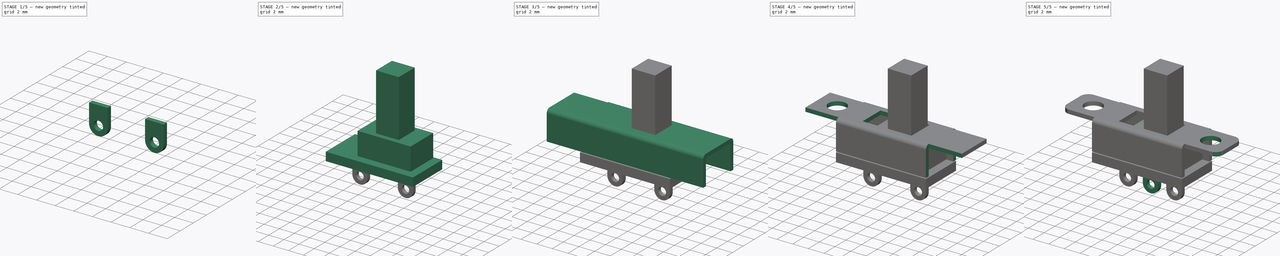
[diagram: build sequence overview — one tinted view per stage of 5, left to right]
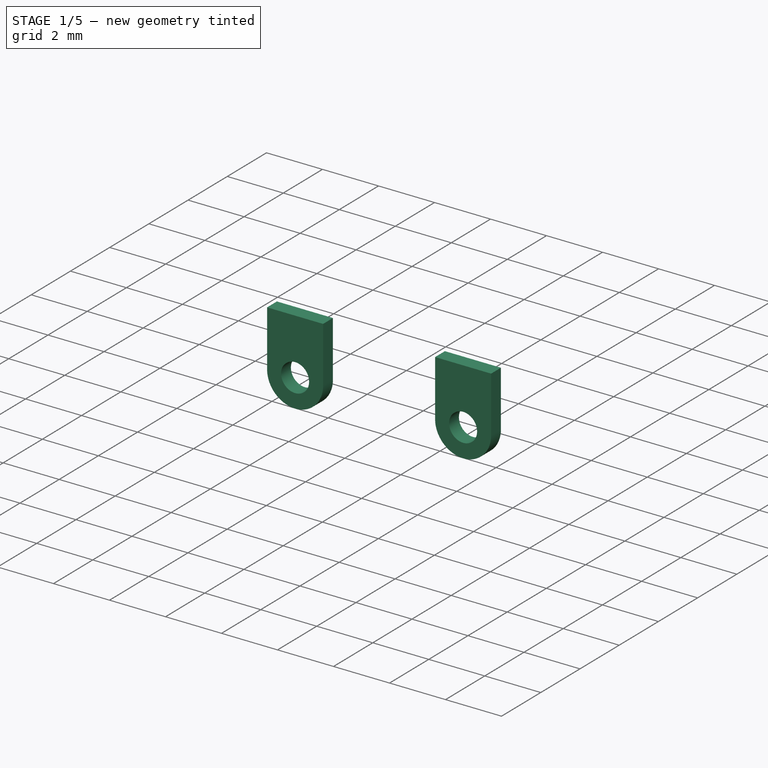
[diagram: stage 1 of 5 — iso view after this stage's code; geometry added in this stage tinted green]
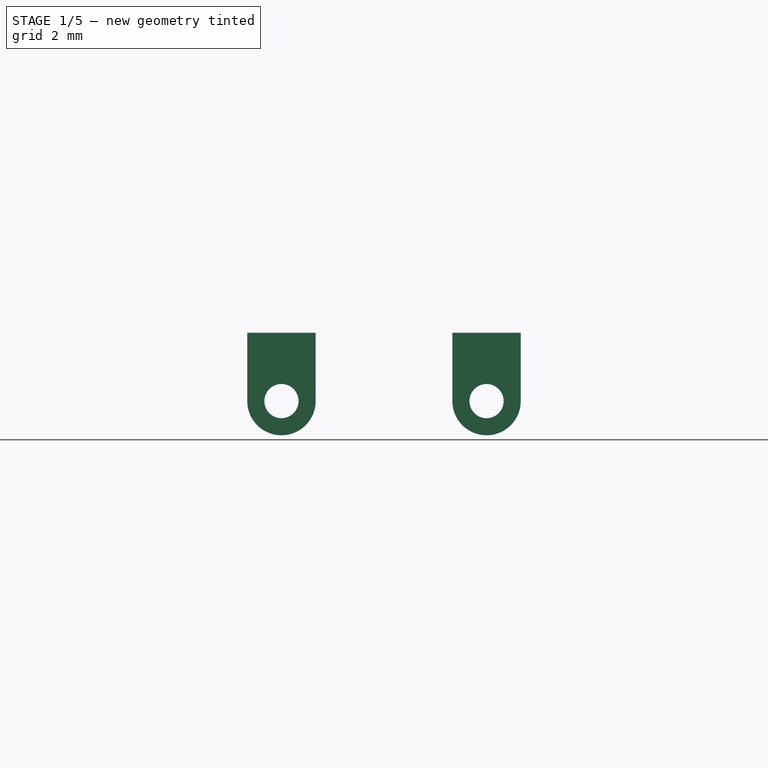
[diagram: stage 1 of 5 — front view after this stage's code; geometry added in this stage tinted green]
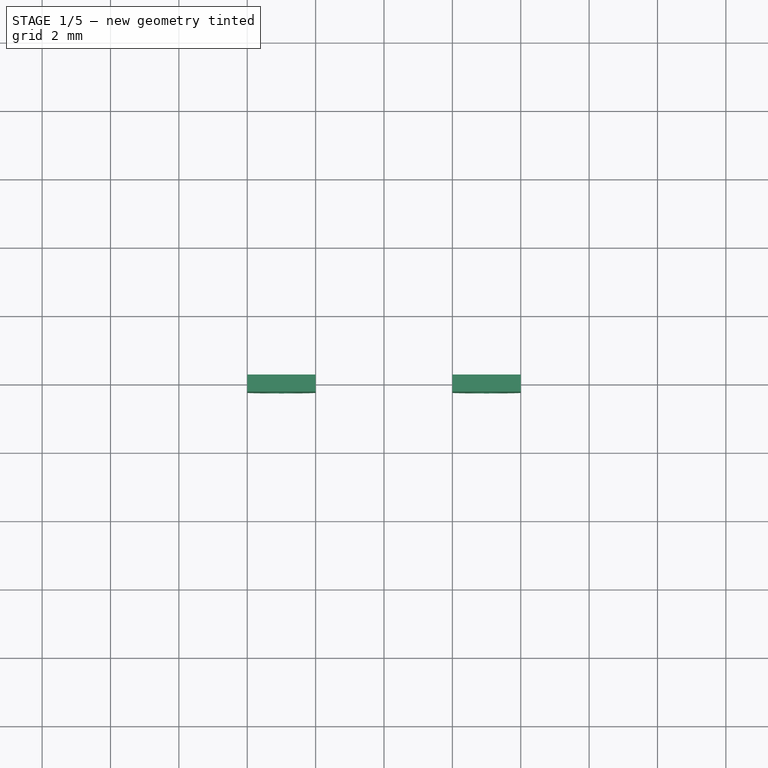
[diagram: stage 1 of 5 — top view after this stage's code; geometry added in this stage tinted green]
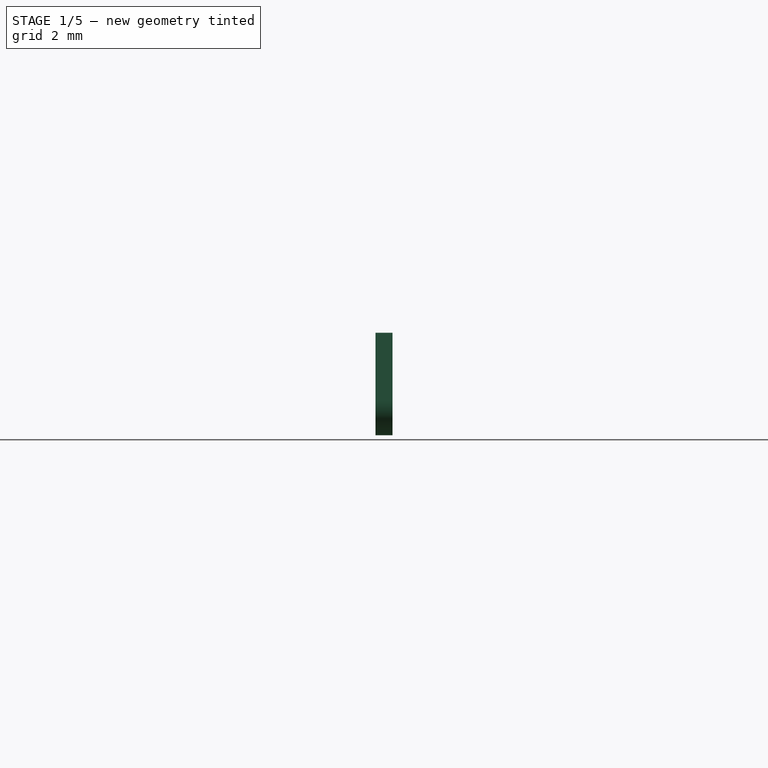
[diagram: stage 1 of 5 — right view after this stage's code; geometry added in this stage tinted green]
FCSTD DOCUMENT  (FreeCAD 0.14R3692 (Git))
Label: SlideSwitch
License: CC-BY 3.0
LicenseURL: http://creativecommons.org/licenses/by/3.0/
objects: Sketcher::SketchObject×7, PartDesign::Pad×4, PartDesign::Pocket×3, PartDesign::Mirrored×3, Part::Feature×3, Part::FeaturePython×2, Part::Thickness×1, PartDesign::MultiTransform×1, PartDesign::Fillet×1, Part::Box×1, Part::MultiFuse×1
note: 34 computed .brp shape members not serialized (recipe doc carries the construction recipe); baked Part::Feature solids carry a one-line shape summary decoded from their .brp

FEATURE [Sketcher::SketchObject] Sketch006  label="PinSketch006"
  Placement = pos=(0,0,0) rot=(-1,0,0;4.71239rad)
  sketch-geometry (5):
    g0: LineSegment StartX=1 StartY=-1.25 StartZ=0 EndX=1 EndY=-3.25 EndZ=0
    g1: ArcOfCircle CenterX=0 CenterY=-3.25 CenterZ=0 NormalX=0 NormalY=0 NormalZ=1 Radius=1 StartAngle=3.14159 EndAngle=6.28319
    g2: LineSegment StartX=-1 StartY=-3.25 StartZ=0 EndX=-1 EndY=-1.25 EndZ=0
    g3: LineSegment StartX=-1 StartY=-1.25 StartZ=0 EndX=1 EndY=-1.25 EndZ=0
    g4: Circle CenterX=0 CenterY=-3.25 CenterZ=0 NormalX=0 NormalY=0 NormalZ=1 Radius=0.5
  constraints (13):
    c: Tangent(g0,g1)
    c: Tangent(g1,g2)
    c: Coincident(g2,g3)
    c: Coincident(g3,g0)
    c: Vertical(g2)
    c: Vertical(g0)
    c: Horizontal(g3)
    c: PointOnObject(g1,g-2)
    c: DistanceX(g3) = 2
    c: DistanceY(g0) = -2
    c: DistanceY(g-1,g1) = -3.25
    c: Coincident(g1,g4)
    c: Radius(g4) = 0.5
FEATURE [PartDesign::Pad] Pad003  label="PinPad003"
  Length = 0.5
  Length2 = 100
  Midplane = true
  Placement = pos=(0,0,0) rot=(-1,0,0;4.71239rad)
  Sketch = -> Sketch006
  Type = 0
FEATURE [Part::FeaturePython] Clone  label="Clone of PinPad003"  # Draft clone (typed FeaturePython)
  Objects = -> [Pad003]
  Placement = pos=(3,0,0) rot=(1,0,0;1.5708rad)
  Scale = (1,1,1)
FEATURE [Part::FeaturePython] Clone001  label="Clone of PinPad004"  # Draft clone (typed FeaturePython)
  Objects = -> [Pad003]
  Placement = pos=(-3,0,0) rot=(1,0,0;1.5708rad)
  Scale = (1,1,1)
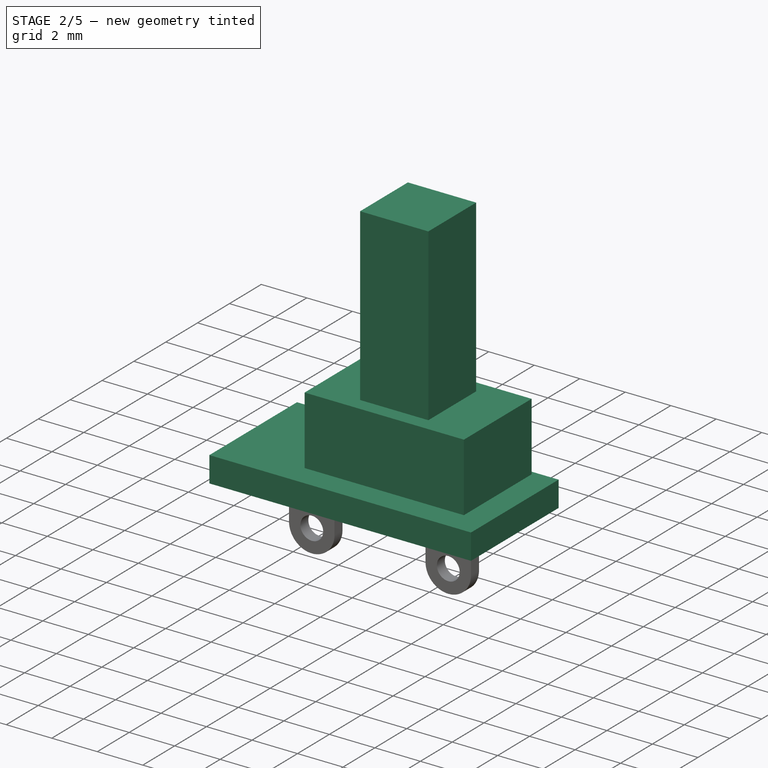
[diagram: stage 2 of 5 — iso view after this stage's code; geometry added in this stage tinted green]
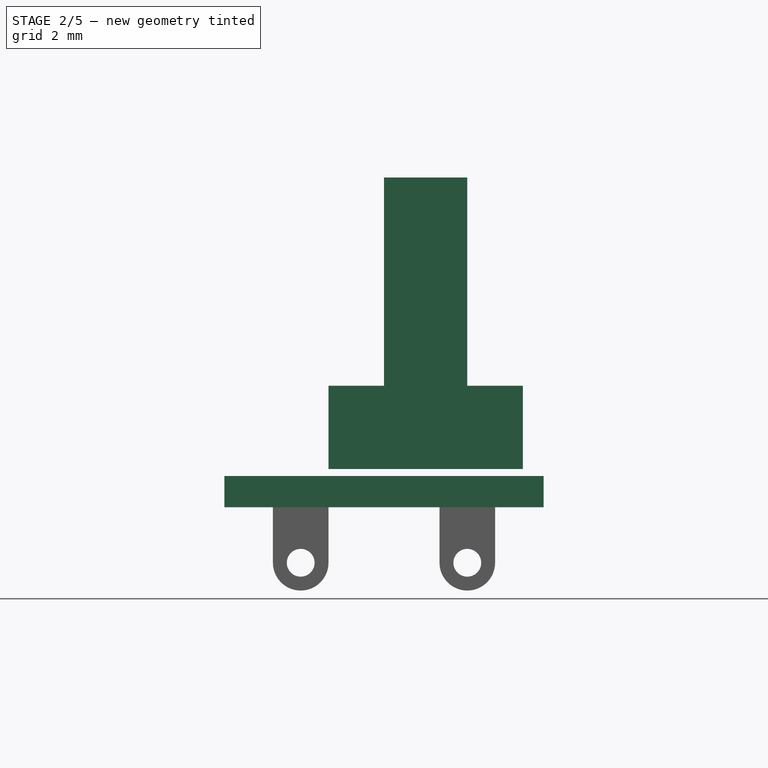
[diagram: stage 2 of 5 — front view after this stage's code; geometry added in this stage tinted green]
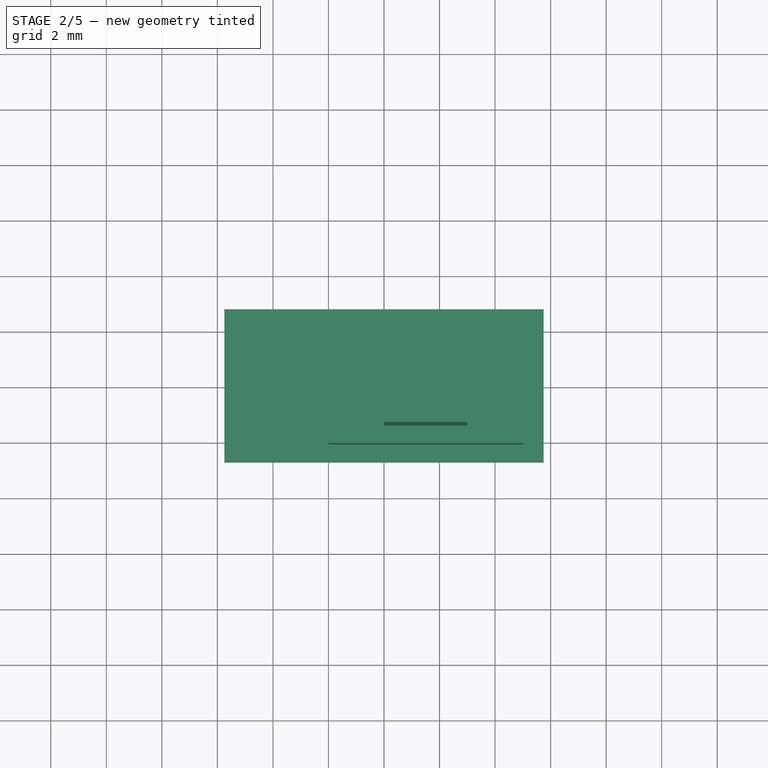
[diagram: stage 2 of 5 — top view after this stage's code; geometry added in this stage tinted green]
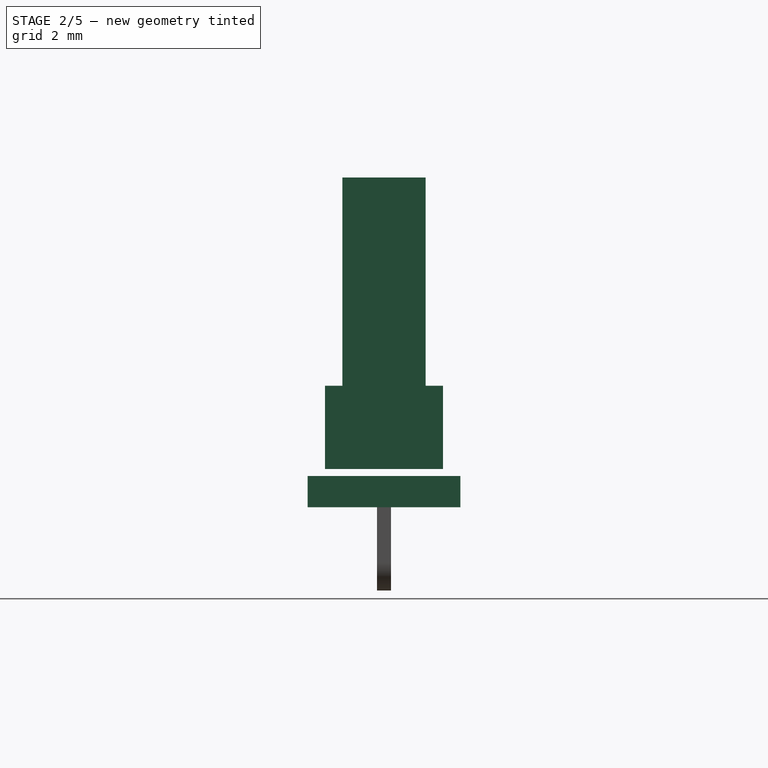
[diagram: stage 2 of 5 — right view after this stage's code; geometry added in this stage tinted green]
FEATURE [Part::Box] Box  label="BoardCube"
  Height = 1.125
  Length = 11.5
  Placement = pos=(-5.75,-2.75,-1.25) rot=(0,0,1;0rad)
  Width = 5.5
FEATURE [Sketcher::SketchObject] Sketch004  label="SlideSketch004"
  Placement = pos=(0,0,0) rot=(-1,0,0;4.71239rad)
  sketch-geometry (4):
    g0: LineSegment StartX=5 StartY=3.125 StartZ=0 EndX=5 EndY=0.125 EndZ=0
    g1: LineSegment StartX=5 StartY=0.125 StartZ=0 EndX=-2 EndY=0.125 EndZ=0
    g2: LineSegment StartX=-2 StartY=0.125 StartZ=0 EndX=-2 EndY=3.125 EndZ=0
    g3: LineSegment StartX=-2 StartY=3.125 StartZ=0 EndX=5 EndY=3.125 EndZ=0
  constraints (12):
    c: Vertical(g0)
    c: Coincident(g0,g1)
    c: Horizontal(g1)
    c: Coincident(g1,g2)
    c: Vertical(g2)
    c: DistanceY(g0) = -3
    c: DistanceY(g-1,g1) = 0.125
    c: Coincident(g0,g3)
    c: Coincident(g2,g3)
    c: Horizontal(g3)
    c: DistanceX(g1) = -7
    c: DistanceX(g-1,g1) = -2
FEATURE [PartDesign::Pad] Pad001  label="SlidePad001"
  Length = 4.25
  Length2 = 100
  Midplane = true
  Placement = pos=(0,0,0) rot=(-1,0,0;4.71239rad)
  Sketch = -> Sketch004
  Type = 0
FEATURE [Sketcher::SketchObject] Sketch005  label="SlideHandleSketch005"
  Placement = pos=(0,0,3.125) rot=(0,0,1;3.14159rad)
  Support = -> Pad001 [Face4]
  sketch-geometry (4):
    g0: LineSegment StartX=0 StartY=-1.5 StartZ=0 EndX=-3 EndY=-1.5 EndZ=0
    g1: LineSegment StartX=-3 StartY=-1.5 StartZ=0 EndX=-3 EndY=1.5 EndZ=0
    g2: LineSegment StartX=-3 StartY=1.5 StartZ=0 EndX=0 EndY=1.5 EndZ=0
    g3: LineSegment StartX=0 StartY=1.5 StartZ=0 EndX=0 EndY=-1.5 EndZ=0
  constraints (11):
    c: Coincident(g0,g1)
    c: Coincident(g1,g2)
    c: Coincident(g2,g3)
    c: Coincident(g3,g0)
    c: Horizontal(g0)
    c: Horizontal(g2)
    c: Vertical(g1)
    c: Vertical(g3)
    c: Equal(g0,g3)
    c: DistanceX(g0) = -3
    c: Symmetric(g0,g2,g-1)
FEATURE [PartDesign::Pad] Pad002  label="SlideHandlePad002"
  Length = 7.5
  Length2 = 100
  Placement = pos=(0,0,0) rot=(-1,0,0;4.71239rad)
  Sketch = -> Sketch005
  Type = 0
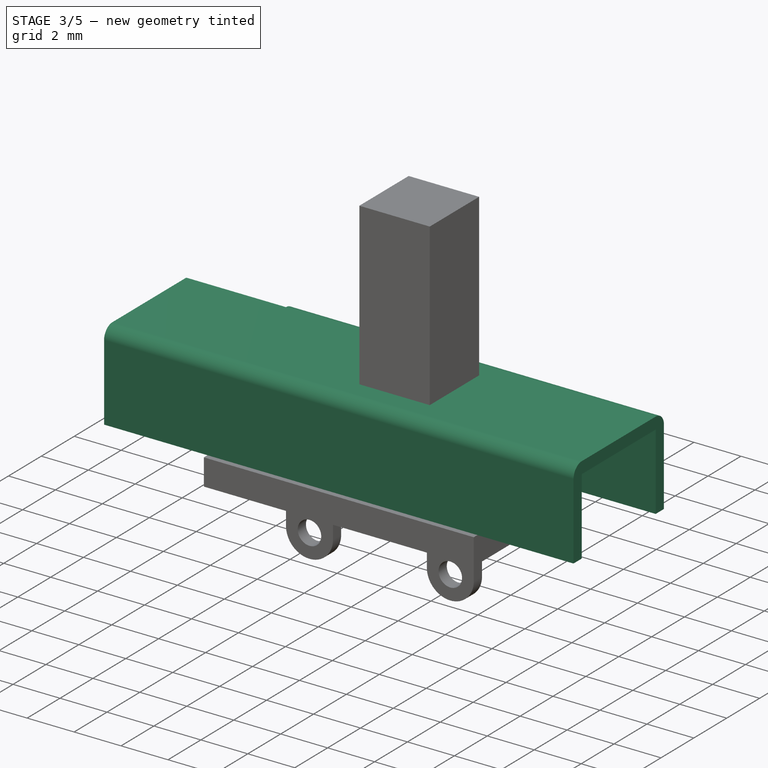
[diagram: stage 3 of 5 — iso view after this stage's code; geometry added in this stage tinted green]
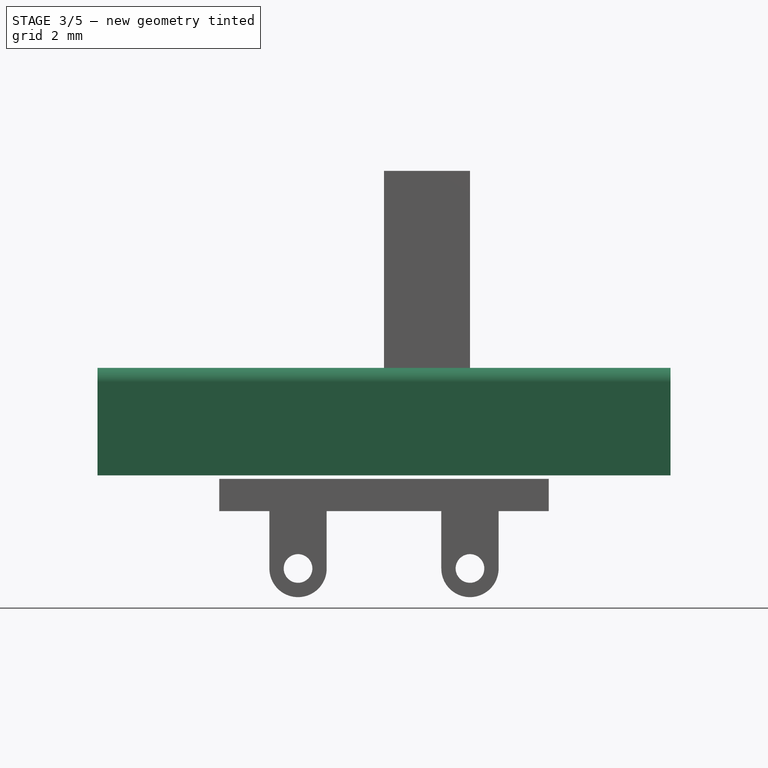
[diagram: stage 3 of 5 — front view after this stage's code; geometry added in this stage tinted green]
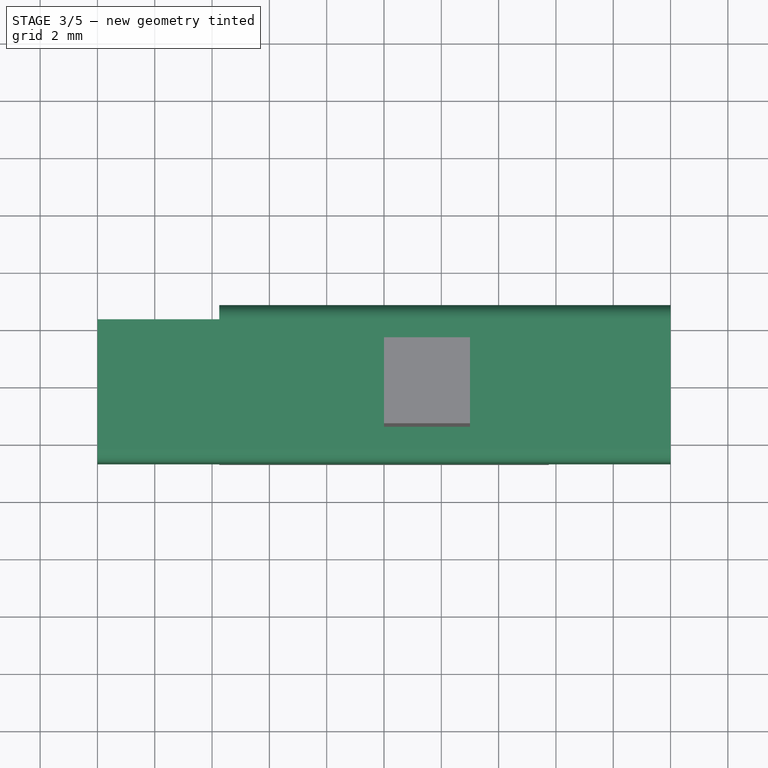
[diagram: stage 3 of 5 — top view after this stage's code; geometry added in this stage tinted green]
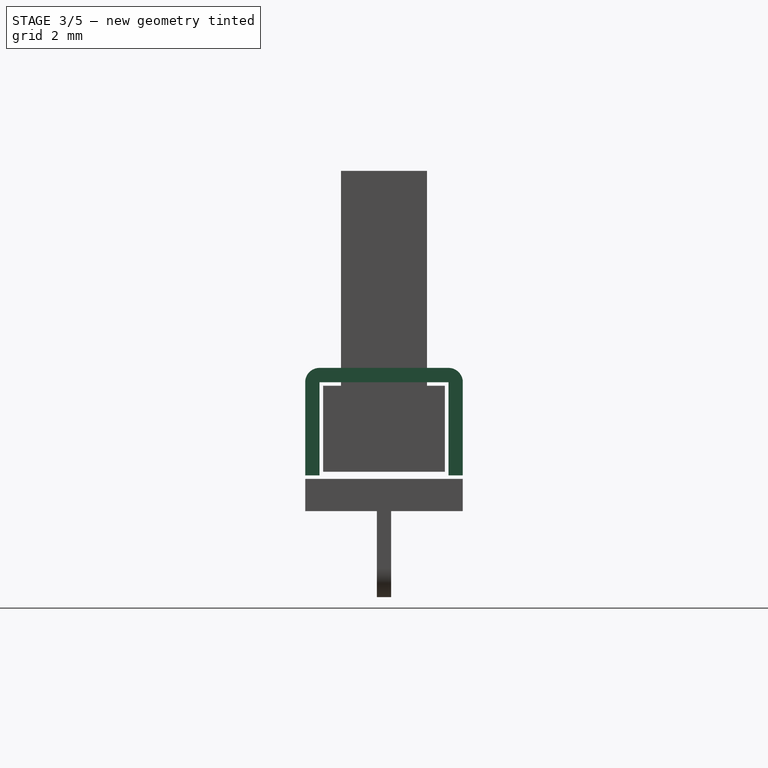
[diagram: stage 3 of 5 — right view after this stage's code; geometry added in this stage tinted green]
FEATURE [Sketcher::SketchObject] Sketch  label="BodySketch"
  sketch-geometry (4):
    g0: LineSegment StartX=-10 StartY=2.25 StartZ=0 EndX=10 EndY=2.25 EndZ=0
    g1: LineSegment StartX=10 StartY=2.25 StartZ=0 EndX=10 EndY=-2.25 EndZ=0
    g2: LineSegment StartX=10 StartY=-2.25 StartZ=0 EndX=-10 EndY=-2.25 EndZ=0
    g3: LineSegment StartX=-10 StartY=-2.25 StartZ=0 EndX=-10 EndY=2.25 EndZ=0
  constraints (11):
    c: Coincident(g0,g1)
    c: Coincident(g1,g2)
    c: Coincident(g2,g3)
    c: Coincident(g3,g0)
    c: Horizontal(g0)
    c: Horizontal(g2)
    c: Vertical(g1)
    c: Vertical(g3)
    c: DistanceX(g2) = -20
    c: DistanceY(g1) = -4.5
    c: Symmetric(g0,g2,g-1)
FEATURE [PartDesign::Pad] Pad  label="BodyPad"
  Length = 3.25
  Length2 = 100
  Sketch = -> Sketch
  Type = 0
FEATURE [Part::Thickness] Thickness  label="BodyThickness"
  Faces = -> Pad [Face2,Face5,Face4]
  Intersection = false
  Join = 0
  Mode = 0
  SelfIntersection = false
  Value = 0.5
FEATURE [Sketcher::SketchObject] Sketch001  label="BodyFinsSketch001"
  Placement = pos=(0,0,3.75) rot=(0,0,1;0rad)
  Support = -> Thickness [Face9]
  sketch-geometry (4):
    g0: LineSegment StartX=-11 StartY=3.25 StartZ=0 EndX=-5.75 EndY=3.25 EndZ=0
    g1: LineSegment StartX=-5.75 StartY=3.25 StartZ=0 EndX=-5.75 EndY=2.25 EndZ=0
    g2: LineSegment StartX=-5.75 StartY=2.25 StartZ=0 EndX=-11 EndY=2.25 EndZ=0
    g3: LineSegment StartX=-11 StartY=2.25 StartZ=0 EndX=-11 EndY=3.25 EndZ=0
  constraints (12):
    c: Coincident(g0,g1)
    c: Coincident(g1,g2)
    c: Coincident(g2,g3)
    c: Coincident(g3,g0)
    c: Horizontal(g0)
    c: Horizontal(g2)
    c: Vertical(g1)
    c: Vertical(g3)
    c: DistanceX(g-1,g1) = -5.75
    c: DistanceY(g-1,g1) = 2.25
    c: DistanceY(g1) = -1
    c: DistanceX(g2) = -5.25
FEATURE [PartDesign::Pocket] Pocket  label="BodyFinsPocket"
  Length = 5
  Sketch = -> Sketch001
  Type = 0
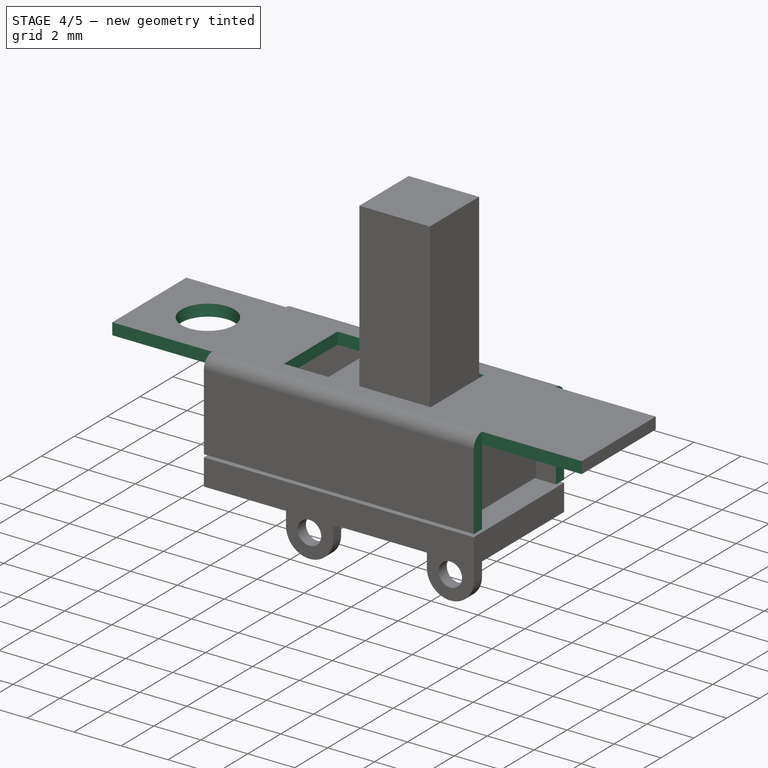
[diagram: stage 4 of 5 — iso view after this stage's code; geometry added in this stage tinted green]
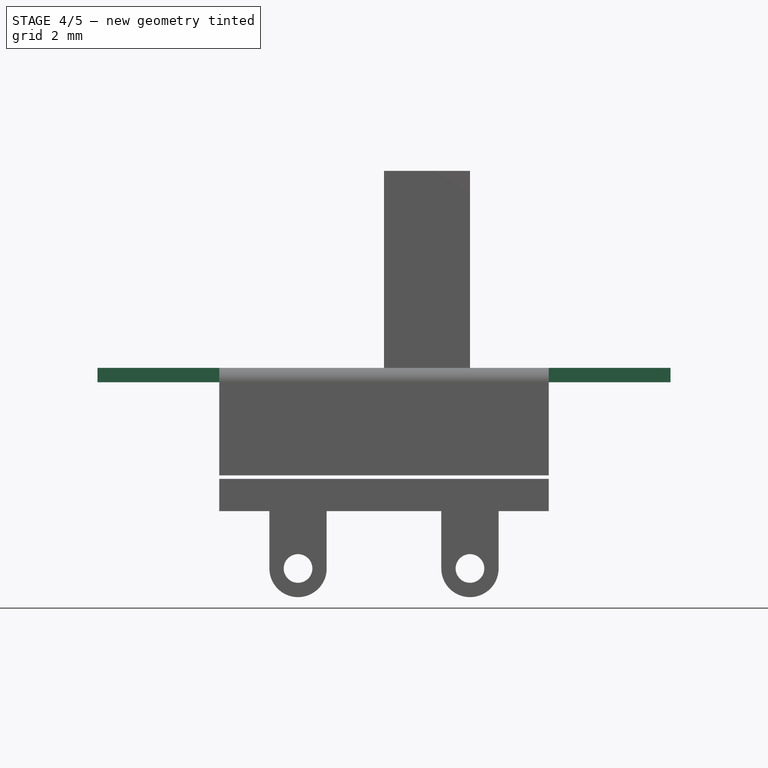
[diagram: stage 4 of 5 — front view after this stage's code; geometry added in this stage tinted green]
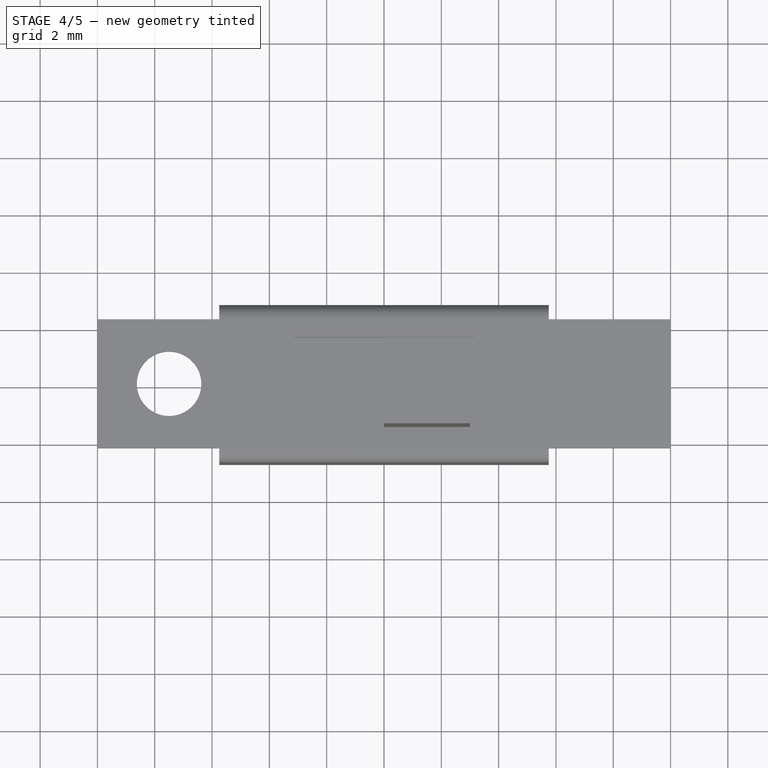
[diagram: stage 4 of 5 — top view after this stage's code; geometry added in this stage tinted green]
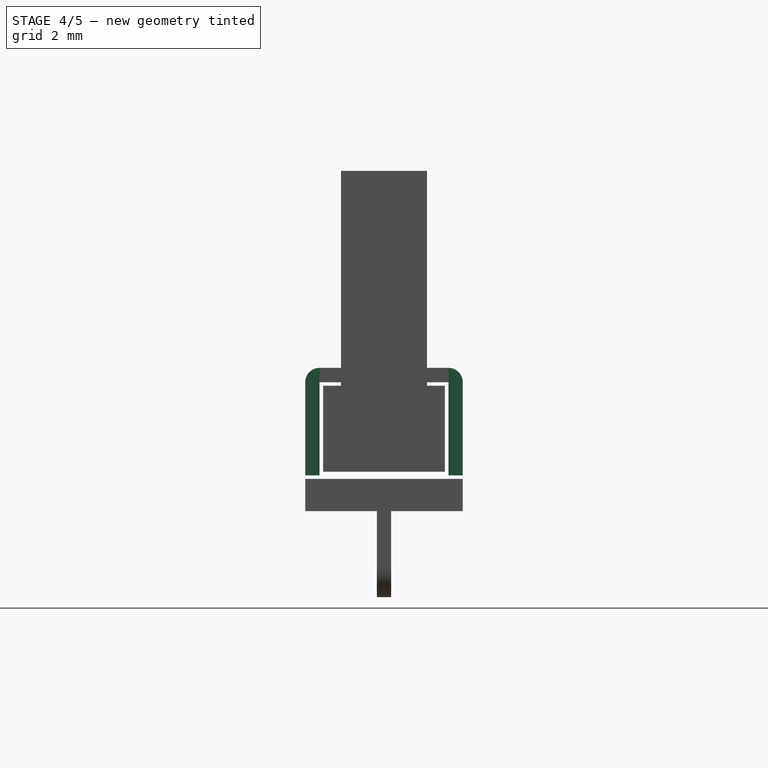
[diagram: stage 4 of 5 — right view after this stage's code; geometry added in this stage tinted green]
FEATURE [PartDesign::Mirrored] Mirrored  label="BodyFinsMirrored"
  MirrorPlane = -> Sketch001 [V_Axis]
FEATURE [PartDesign::Mirrored] Mirrored001  label="BodyFinsMirrored001"
  MirrorPlane = -> Sketch001 [H_Axis]
FEATURE [PartDesign::MultiTransform] MultiTransform  label="BodyFinsMultiTransform"
  Originals = -> [Pocket]
  Transformations = -> [Mirrored,Mirrored001]
FEATURE [Sketcher::SketchObject] Sketch002  label="BodySlideHoleSketch002"
  Placement = pos=(0,0,3.75) rot=(0,0,1;0rad)
  Support = -> MultiTransform [Face5]
  sketch-geometry (4):
    g0: LineSegment StartX=-3.125 StartY=1.625 StartZ=0 EndX=3.125 EndY=1.625 EndZ=0
    g1: LineSegment StartX=3.125 StartY=1.625 StartZ=0 EndX=3.125 EndY=-1.625 EndZ=0
    g2: LineSegment StartX=3.125 StartY=-1.625 StartZ=0 EndX=-3.125 EndY=-1.625 EndZ=0
    g3: LineSegment StartX=-3.125 StartY=-1.625 StartZ=0 EndX=-3.125 EndY=1.625 EndZ=0
  constraints (11):
    c: Coincident(g0,g1)
    c: Coincident(g1,g2)
    c: Coincident(g2,g3)
    c: Coincident(g3,g0)
    c: Horizontal(g0)
    c: Horizontal(g2)
    c: Vertical(g1)
    c: Vertical(g3)
    c: DistanceX(g2) = -6.25
    c: DistanceY(g1) = -3.25
    c: Symmetric(g1,g0,g-1)
FEATURE [PartDesign::Pocket] Pocket001  label="BodySlideHolePocket001"
  Length = 5
  Sketch = -> Sketch002
  Type = 0
FEATURE [Sketcher::SketchObject] Sketch003  label="BodyScrewHoleSketch003"
  Placement = pos=(0,0,3.75) rot=(0,0,1;0rad)
  Support = -> Pocket001 [Face5]
  sketch-geometry (1):
    g0: Circle CenterX=-7.5 CenterY=0 CenterZ=0 NormalX=0 NormalY=0 NormalZ=1 Radius=1.125
  constraints (3):
    c: PointOnObject(g0,g-1)
    c: Radius(g0) = 1.125
    c: DistanceX(g-1,g0) = -7.5
FEATURE [PartDesign::Pocket] Pocket002  label="BodyScrewHolePocket002"
  Length = 5
  Sketch = -> Sketch003
  Type = 0
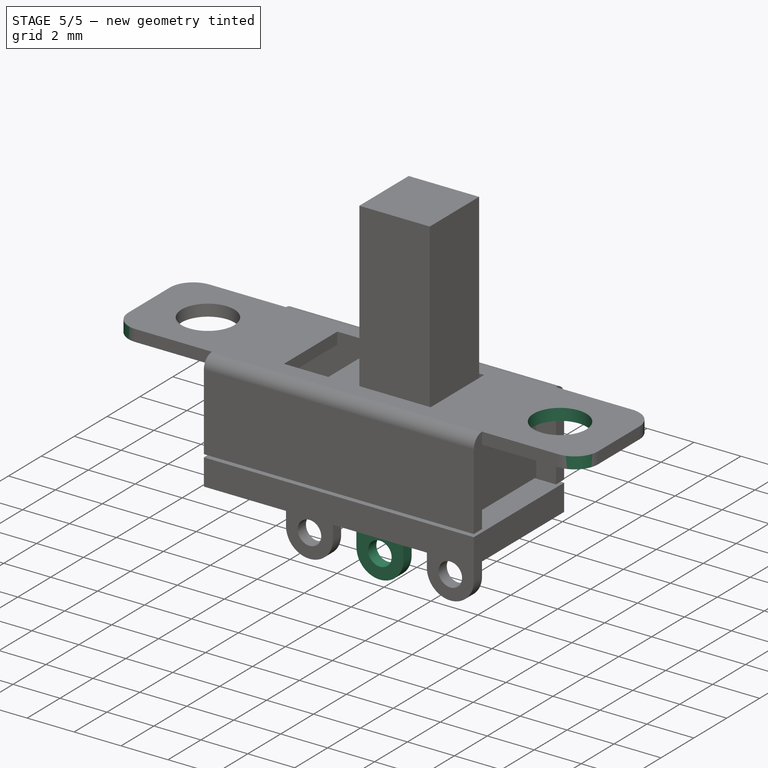
[diagram: stage 5 of 5 — iso view after this stage's code; geometry added in this stage tinted green]
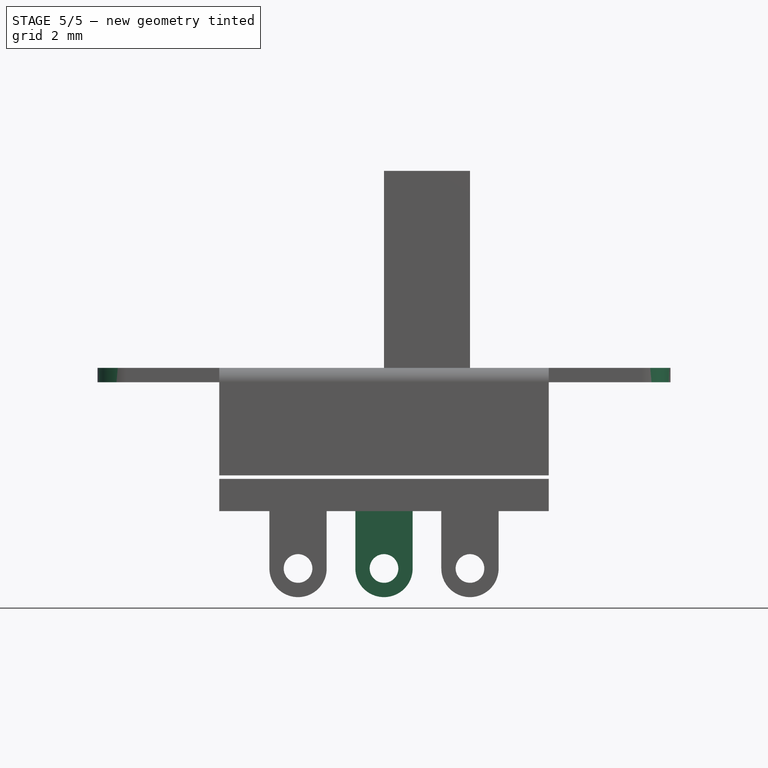
[diagram: stage 5 of 5 — front view after this stage's code; geometry added in this stage tinted green]
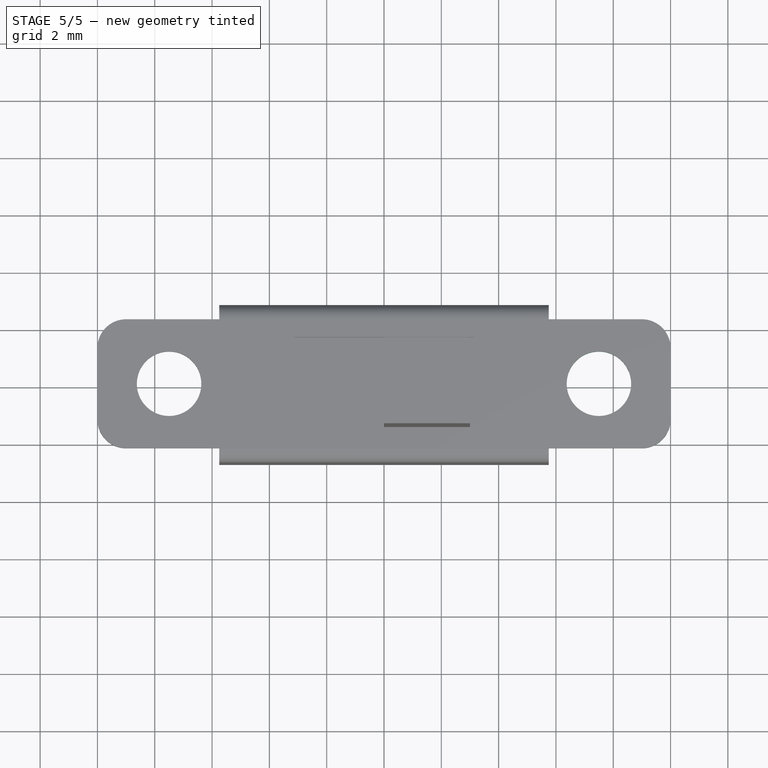
[diagram: stage 5 of 5 — top view after this stage's code; geometry added in this stage tinted green]
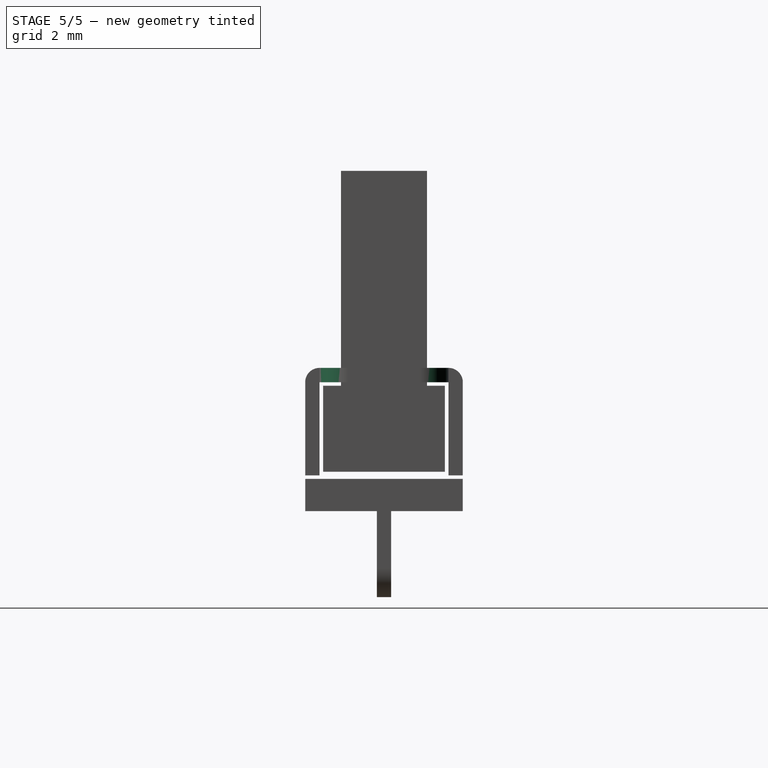
[diagram: stage 5 of 5 — right view after this stage's code; geometry added in this stage tinted green]
FEATURE [PartDesign::Mirrored] Mirrored002  label="BodyScrewHoleMirrored002"
  MirrorPlane = -> Sketch003 [V_Axis]
  Originals = -> [Pocket002]
FEATURE [PartDesign::Fillet] Fillet  label="BodyFillet"
  Base = -> Mirrored002 [Edge5,Edge1,Edge52,Edge47]
  Radius = 1
FEATURE [Part::MultiFuse] Fusion  label="SlideSwitchFusion"
  Shapes = -> [Clone001,Clone,Pad003,Pad002,Box,Fillet]
FEATURE [Part::Feature] Part__Feature  label="SlideSwitchFusion001"
  shape: bbox 11.5 x 5.5 x 4.125 mm, 24 faces (baked)
FEATURE [Part::Feature] Part__Feature001  label="SlideSwitchFusion002"
  shape: bbox 7 x 4.25 x 10.5 mm, 11 faces (baked)
FEATURE [Part::Feature] Part__Feature002  label="SlideSwitchFusion003"
  shape: bbox 20 x 5.5 x 3.75 mm, 30 faces (baked)
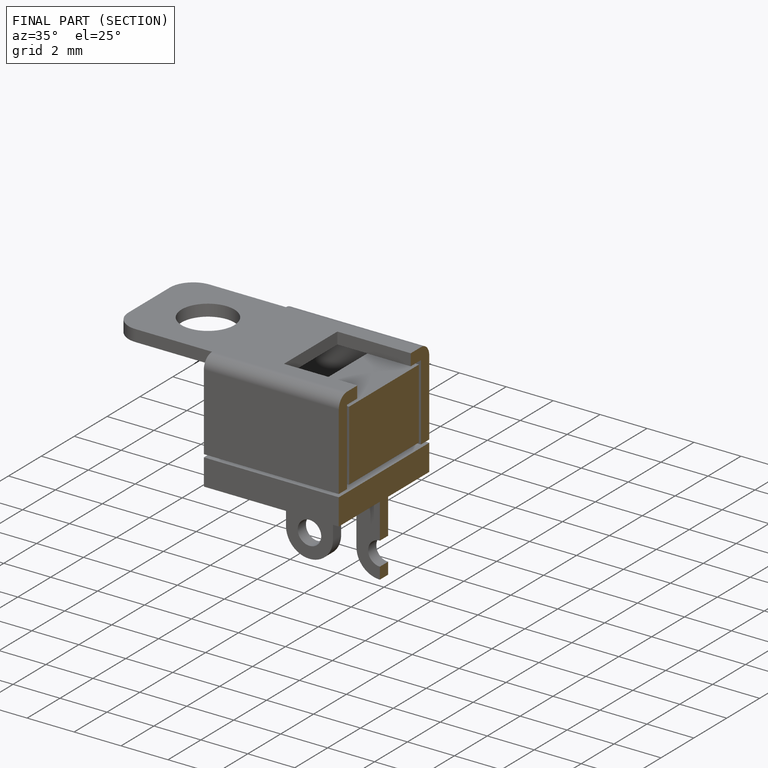
[diagram: finished part — half-section view (interior)]
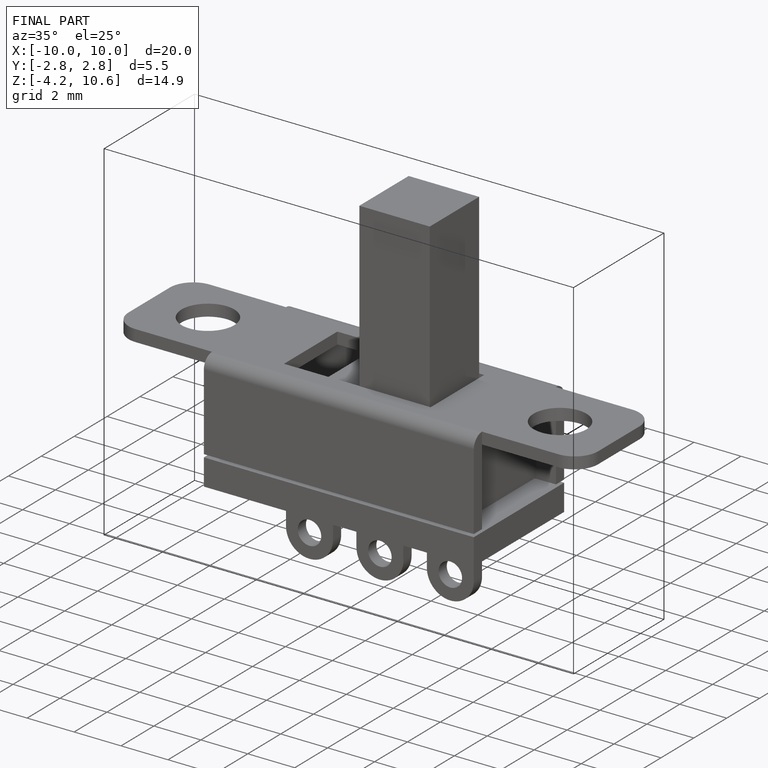
[diagram: finished part — iso view with bounding-box wireframe]
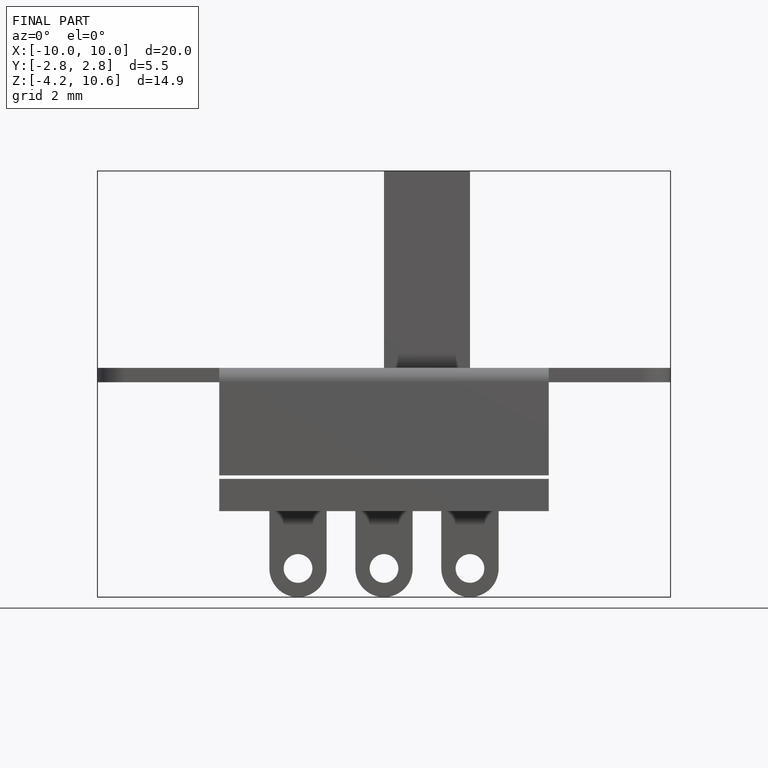
[diagram: finished part — front view with bounding-box wireframe]
